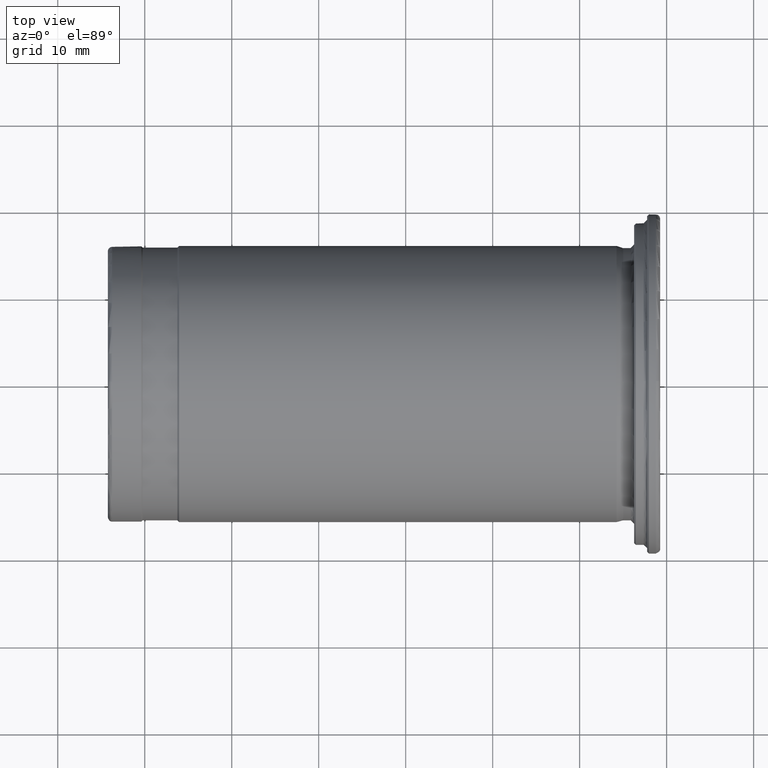
[diagram: clean part render]
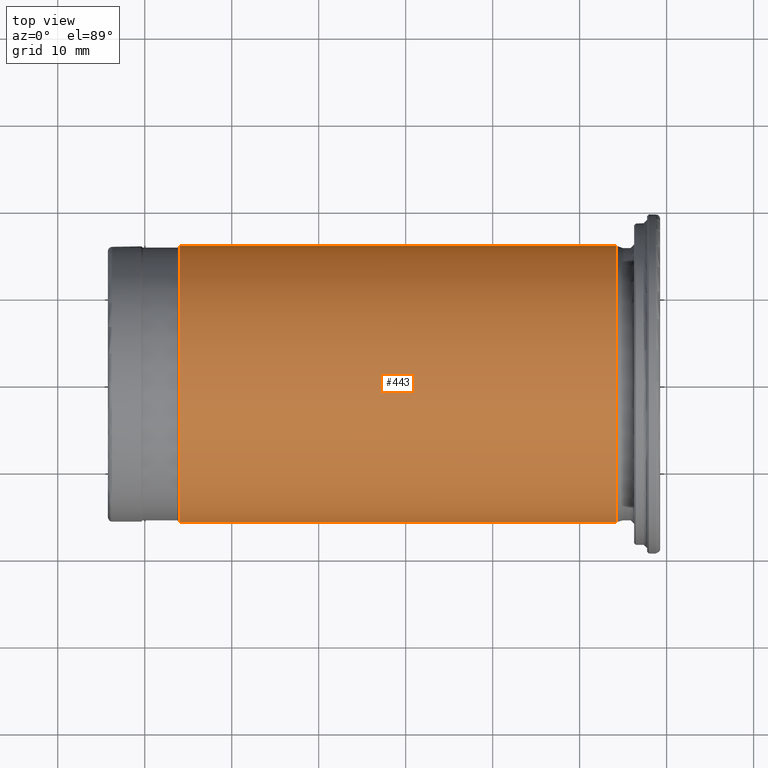
[diagram: same view with one face highlighted and labeled with its STEP entity id]
A machine part, top view. The second image highlights one B-rep face of the part: STEP entity #443.
In plain terms, the highlighted cylindrical surface (bore or boss wall) has radius 15.875 mm, axis along (1, 0, 0).
Its self-contained STEP definition (entity closure, byte-faithful):
#52=FACE_OUTER_BOUND('',#82,.T.);
#82=EDGE_LOOP('',(#346,#347,#348,#349));
#110=LINE('',#801,#126);
#126=VECTOR('',#642,15.8750000000001);
#154=CIRCLE('',#515,15.8749999999997);
#155=CIRCLE('',#517,15.8750000000006);
#201=VERTEX_POINT('',#795);
#202=VERTEX_POINT('',#799);
#252=EDGE_CURVE('',#201,#201,#154,.T.);
#254=EDGE_CURVE('',#202,#202,#155,.T.);
#255=EDGE_CURVE('',#202,#201,#110,.T.);
#346=ORIENTED_EDGE('',*,*,#254,.F.);
#347=ORIENTED_EDGE('',*,*,#255,.T.);
#348=ORIENTED_EDGE('',*,*,#252,.T.);
#349=ORIENTED_EDGE('',*,*,#255,.F.);
#427=CYLINDRICAL_SURFACE('',#516,15.8750000000001);
#443=ADVANCED_FACE('',(#52),#427,.T.);
#515=AXIS2_PLACEMENT_3D('',#796,#635,#636);
#516=AXIS2_PLACEMENT_3D('',#798,#638,#639);
#517=AXIS2_PLACEMENT_3D('',#800,#640,#641);
#635=DIRECTION('center_axis',(1.,0.,0.));
#636=DIRECTION('ref_axis',(0.,0.,-1.));
#638=DIRECTION('center_axis',(1.,0.,0.));
#639=DIRECTION('ref_axis',(0.,1.,0.));
#640=DIRECTION('center_axis',(1.,0.,0.));
#641=DIRECTION('ref_axis',(0.,0.,-1.));
#642=DIRECTION('',(-1.,0.,0.));
#795=CARTESIAN_POINT('',(-56.0433936122849,-15.8749999999997,-1.94412679364638E-15));
#796=CARTESIAN_POINT('Origin',(-56.0433936122849,0.,0.));
#798=CARTESIAN_POINT('Origin',(-30.8933936122816,0.,0.));
#799=CARTESIAN_POINT('',(-5.74339361227828,-15.8750000000001,-1.94412679364644E-15));
#800=CARTESIAN_POINT('Origin',(-5.74339361227828,0.,0.));
#801=CARTESIAN_POINT('',(-30.8933936122816,-15.8750000000001,-1.94412679364644E-15));